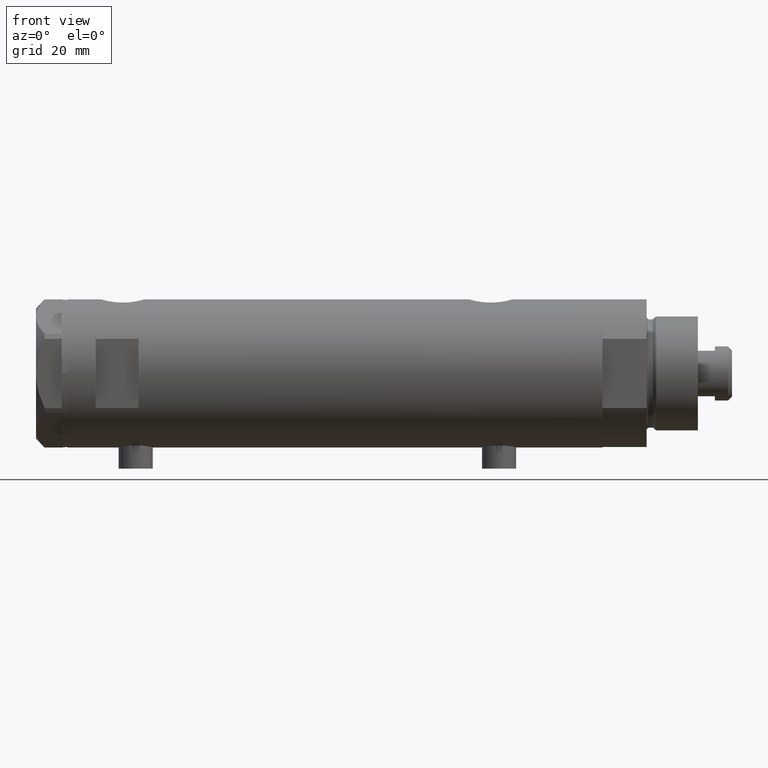
[diagram: clean part render]
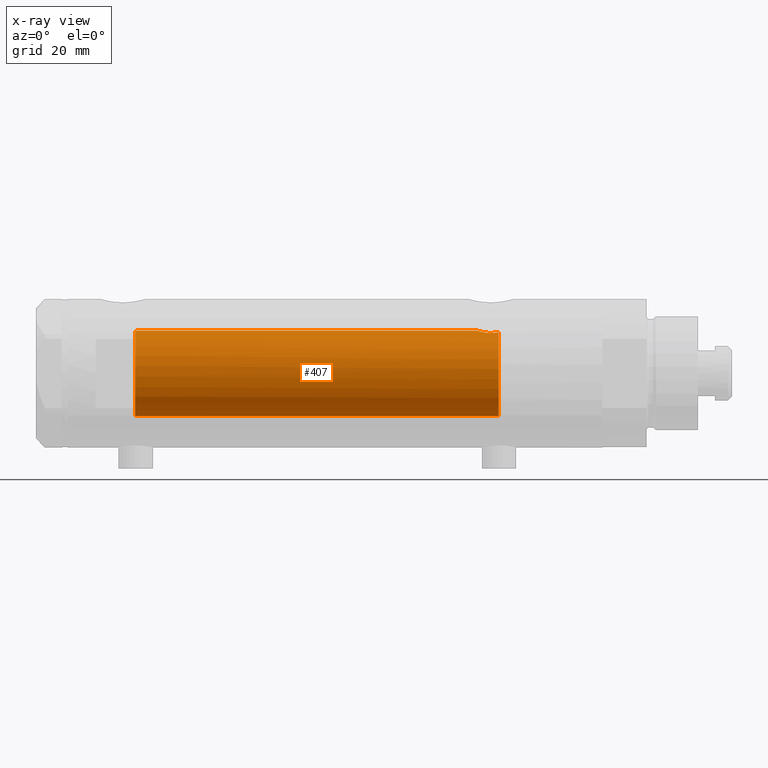
[diagram: x-ray — body ghosted, one internal face saturated and labeled with its STEP entity id]
A machine part, front view, then the same camera in x-ray: the body is ghosted and one INTERNAL B-rep face — a face not visible from any outside direction — is saturated and labeled: STEP entity #407.
In plain terms, the highlighted cylindrical surface (partial cylindrical patch) has radius 15 mm, axis along (1, 0, -0).
Its self-contained STEP definition (entity closure, byte-faithful):
#34 = CARTESIAN_POINT ( 'NONE',  ( 14.98404828787190901, -0.7909490205761857684, 69.63356230794191504 ) ) ;
#109 = CARTESIAN_POINT ( 'NONE',  ( 15.00000000000000000, 0.000000000000000000, 69.58500000000000796 ) ) ;
#133 = EDGE_LOOP ( 'NONE', ( #1731, #1426, #2569, #4001, #549, #281 ) ) ;
#137 = VERTEX_POINT ( 'NONE', #109 ) ;
#281 = ORIENTED_EDGE ( 'NONE', *, *, #3133, .T. ) ;
#299 = CARTESIAN_POINT ( 'NONE',  ( 14.46277203719950855, -3.978470183374506863, -57.55000000000000426 ) ) ;
#317 = CARTESIAN_POINT ( 'NONE',  ( 14.92307637240703677, -1.532123959568890026, -50.12726557582075770 ) ) ;
#338 = DIRECTION ( 'NONE',  ( 0.000000000000000000, 0.000000000000000000, 1.000000000000000000 ) ) ;
#348 = CARTESIAN_POINT ( 'NONE',  ( 14.90017778876744892, -1.739641523727902372, -50.20130925695124802 ) ) ;
#375 = CARTESIAN_POINT ( 'NONE',  ( 15.00000000000000000, 5.959273468635536151E-16, -49.88499999999999801 ) ) ;
#407 = ADVANCED_FACE ( 'NONE', ( #2941 ), #4464, .F. ) ;
#534 = DIRECTION ( 'NONE',  ( -1.000000000000000000, 0.000000000000000000, 0.000000000000000000 ) ) ;
#549 = ORIENTED_EDGE ( 'NONE', *, *, #1682, .F. ) ;
#669 = CARTESIAN_POINT ( 'NONE',  ( 14.25856516724843992, -4.658255869285516937, -56.17044016644937443 ) ) ;
#708 = CARTESIAN_POINT ( 'NONE',  ( 15.00000000000000000, -0.2216692655473431750, -49.88499999999999091 ) ) ;
#998 = CARTESIAN_POINT ( 'NONE',  ( 14.39424372609267877, -4.221002267729138779, -57.17893131093290293 ) ) ;
#1019 = CARTESIAN_POINT ( 'NONE',  ( 14.18786347641749757, -4.868757996482117711, -54.63322300400292875 ) ) ;
#1087 = CARTESIAN_POINT ( 'NONE',  ( 14.33349657381506681, -4.422893686125041413, -56.78827841538883803 ) ) ;
#1231 = DIRECTION ( 'NONE',  ( -0.000000000000000000, -0.000000000000000000, -1.000000000000000000 ) ) ;
#1411 = CARTESIAN_POINT ( 'NONE',  ( 14.25977760983849052, -4.654557688538888627, -53.31736805897653397 ) ) ;
#1426 = ORIENTED_EDGE ( 'NONE', *, *, #3562, .T. ) ;
#1455 = CARTESIAN_POINT ( 'NONE',  ( 14.46277203719950855, -3.978470183374506863, -57.55000000000000426 ) ) ;
#1528 = CARTESIAN_POINT ( 'NONE',  ( 14.87720562886504183, -1.924385875533404233, 69.97741675737690059 ) ) ;
#1608 = AXIS2_PLACEMENT_3D ( 'NONE', #2529, #2040, #2454 ) ;
#1650 = CARTESIAN_POINT ( 'NONE',  ( 0.000000000000000000, 0.000000000000000000, 93.95000000000001705 ) ) ;
#1682 = EDGE_CURVE ( 'NONE', #4460, #2710, #2560, .T. ) ;
#1731 = ORIENTED_EDGE ( 'NONE', *, *, #2038, .F. ) ;
#1765 = CARTESIAN_POINT ( 'NONE',  ( 0.000000000000000000, 0.000000000000000000, 70.15000000000000568 ) ) ;
#1770 = CARTESIAN_POINT ( 'NONE',  ( 15.00000000000000000, 1.836970198721029589E-15, 93.95000000000001705 ) ) ;
#1772 = CARTESIAN_POINT ( 'NONE',  ( 14.72015646623405871, -2.909233045280601893, -50.82572079632731743 ) ) ;
#1840 = CIRCLE ( 'NONE', #2776, 15.00000000000000000 ) ;
#1869 = CARTESIAN_POINT ( 'NONE',  ( 14.81710879718117546, -2.343063746046468054, -50.48067662538952050 ) ) ;
#1907 = CARTESIAN_POINT ( 'NONE',  ( -15.00000000000000000, 0.000000000000000000, -57.55000000000000426 ) ) ;
#1926 = CARTESIAN_POINT ( 'NONE',  ( 14.92029983160078643, -1.555365312915180542, 69.83609703141415537 ) ) ;
#1952 = DIRECTION ( 'NONE',  ( -0.000000000000000000, -0.000000000000000000, -1.000000000000000000 ) ) ;
#1965 = VERTEX_POINT ( 'NONE', #299 ) ;
#2038 = EDGE_CURVE ( 'NONE', #137, #2096, #2279, .T. ) ;
#2040 = DIRECTION ( 'NONE',  ( 0.000000000000000000, 0.000000000000000000, -1.000000000000000000 ) ) ;
#2096 = VERTEX_POINT ( 'NONE', #2970 ) ;
#2138 = CARTESIAN_POINT ( 'NONE',  ( 14.19858338301463441, -4.837406781463696070, -54.18614104090499239 ) ) ;
#2157 = VECTOR ( 'NONE', #3694, 1000.000000000000000 ) ;
#2172 = CARTESIAN_POINT ( 'NONE',  ( 14.23846660849503465, -4.718934182878722794, -55.95401121469808459 ) ) ;
#2194 = CARTESIAN_POINT ( 'NONE',  ( 14.42796883436190214, -4.108435602805831088, -52.10726922759030799 ) ) ;
#2279 = B_SPLINE_CURVE_WITH_KNOTS ( 'NONE', 3,
 ( #3788, #3050, #34, #3809, #1926, #1528, #3841, #3022 ),
 .UNSPECIFIED., .F., .F.,
 ( 4, 2, 2, 4 ),
 ( 0.000000000000000000, 0.001182100180564259889, 0.001773150270846394604, 0.002364200361128529319 ),
 .UNSPECIFIED. ) ;
#2357 = VERTEX_POINT ( 'NONE', #375 ) ;
#2435 = B_SPLINE_CURVE_WITH_KNOTS ( 'NONE', 3,
 ( #1455, #2880, #998, #1087, #4788, #669, #2172, #2615, #4090, #4135, #1019, #2138, #3356, #2968, #1411, #3328, #4031, #2194, #2902, #2574, #1772, #1869, #3766, #348, #317, #2947, #4418, #2543, #708, #4473 ),
 .UNSPECIFIED., .F., .F.,
 ( 4, 2, 2, 2, 2, 2, 2, 2, 2, 2, 2, 2, 2, 2, 4 ),
 ( 0.004672505804584289359, 0.005337629501999303222, 0.006002753199414317953, 0.006667876896829330949, 0.007333000594244345680, 0.007998124291659358676, 0.008663247989074373406, 0.009328371686489388137, 0.009993495383904402868, 0.01132374277873441151, 0.01265399017356442016, 0.01331911387097942448, 0.01398423756839442880, 0.01464936126580943312, 0.01531448496322443745 ),
 .UNSPECIFIED. ) ;
#2454 = DIRECTION ( 'NONE',  ( -1.000000000000000000, 0.000000000000000000, 0.000000000000000000 ) ) ;
#2529 = CARTESIAN_POINT ( 'NONE',  ( 0.000000000000000000, 0.000000000000000000, -57.55000000000000426 ) ) ;
#2543 = CARTESIAN_POINT ( 'NONE',  ( 14.99508877558421993, -0.4434836953032583184, -49.90007684727662252 ) ) ;
#2560 = LINE ( 'NONE', #3818, #4132 ) ;
#2569 = ORIENTED_EDGE ( 'NONE', *, *, #2971, .F. ) ;
#2574 = CARTESIAN_POINT ( 'NONE',  ( 14.64727859494137263, -3.248701865452407578, -51.10174013696655493 ) ) ;
#2615 = CARTESIAN_POINT ( 'NONE',  ( 14.20819413761015504, -4.809312895991456394, -55.51713251522167525 ) ) ;
#2710 = VERTEX_POINT ( 'NONE', #1907 ) ;
#2776 = AXIS2_PLACEMENT_3D ( 'NONE', #1765, #338, #2843 ) ;
#2843 = DIRECTION ( 'NONE',  ( 1.000000000000000000, 0.000000000000000000, 0.000000000000000000 ) ) ;
#2880 = CARTESIAN_POINT ( 'NONE',  ( 14.42775250319760083, -4.105775281508734054, -57.36911445102909113 ) ) ;
#2902 = CARTESIAN_POINT ( 'NONE',  ( 14.49994286062941562, -3.853373987417223479, -51.74743896782911889 ) ) ;
#2941 = FACE_OUTER_BOUND ( 'NONE', #133, .T. ) ;
#2947 = CARTESIAN_POINT ( 'NONE',  ( 14.96064712090283777, -1.106639041422191827, -50.00738179736369915 ) ) ;
#2968 = CARTESIAN_POINT ( 'NONE',  ( 14.23984499268011028, -4.714778477509579346, -53.53008258614766390 ) ) ;
#2970 = CARTESIAN_POINT ( 'NONE',  ( 14.82638779339053947, -2.275571356824482638, 70.15000000000000568 ) ) ;
#2971 = EDGE_CURVE ( 'NONE', #1965, #2357, #2435, .T. ) ;
#3022 = CARTESIAN_POINT ( 'NONE',  ( 14.82638779339053947, -2.275571356824482638, 70.15000000000000568 ) ) ;
#3050 = CARTESIAN_POINT ( 'NONE',  ( 15.00000000000000178, -0.3999014018875933218, 69.58499999999999375 ) ) ;
#3133 = EDGE_CURVE ( 'NONE', #4460, #2096, #1840, .T. ) ;
#3328 = CARTESIAN_POINT ( 'NONE',  ( 14.30772250772359833, -4.505024017690383076, -52.90010806953220879 ) ) ;
#3356 = CARTESIAN_POINT ( 'NONE',  ( 14.20926245015526135, -4.806160851464706063, -53.96377327795616452 ) ) ;
#3430 = CIRCLE ( 'NONE', #1608, 15.00000000000000000 ) ;
#3489 = AXIS2_PLACEMENT_3D ( 'NONE', #1650, #1231, #534 ) ;
#3562 = EDGE_CURVE ( 'NONE', #137, #2357, #3657, .T. ) ;
#3657 = LINE ( 'NONE', #1770, #2157 ) ;
#3694 = DIRECTION ( 'NONE',  ( -0.000000000000000000, -0.000000000000000000, -1.000000000000000000 ) ) ;
#3766 = CARTESIAN_POINT ( 'NONE',  ( 14.84733308118440220, -2.144376633039216440, -50.37751912952715116 ) ) ;
#3788 = CARTESIAN_POINT ( 'NONE',  ( 15.00000000000000000, 0.000000000000000000, 69.58500000000000796 ) ) ;
#3809 = CARTESIAN_POINT ( 'NONE',  ( 14.93900636919599556, -1.364886281976674942, 69.77622504971313333 ) ) ;
#3818 = CARTESIAN_POINT ( 'NONE',  ( -15.00000000000000000, 0.000000000000000000, 93.95000000000001705 ) ) ;
#3841 = CARTESIAN_POINT ( 'NONE',  ( 14.85289483991917692, -2.102865829523694607, 70.05860377881609224 ) ) ;
#4001 = ORIENTED_EDGE ( 'NONE', *, *, #4421, .T. ) ;
#4031 = CARTESIAN_POINT ( 'NONE',  ( 14.33594561531104006, -4.414979644548145288, -52.69453393419243525 ) ) ;
#4090 = CARTESIAN_POINT ( 'NONE',  ( 14.19797987272029438, -4.839174951492910104, -55.29741451501411831 ) ) ;
#4132 = VECTOR ( 'NONE', #1952, 1000.000000000000000 ) ;
#4135 = CARTESIAN_POINT ( 'NONE',  ( 14.18781489734108270, -4.868896704194245473, -54.85545969036063241 ) ) ;
#4418 = CARTESIAN_POINT ( 'NONE',  ( 14.97537530859971966, -0.8874117095427771496, -49.96137464055829014 ) ) ;
#4421 = EDGE_CURVE ( 'NONE', #1965, #2710, #3430, .T. ) ;
#4460 = VERTEX_POINT ( 'NONE', #4769 ) ;
#4464 = CYLINDRICAL_SURFACE ( 'NONE', #3489, 15.00000000000000000 ) ;
#4473 = CARTESIAN_POINT ( 'NONE',  ( 15.00000000000000000, 5.959273468635536151E-16, -49.88499999999999801 ) ) ;
#4769 = CARTESIAN_POINT ( 'NONE',  ( -15.00000000000000000, 0.000000000000000000, 70.15000000000000568 ) ) ;
#4788 = CARTESIAN_POINT ( 'NONE',  ( 14.30602371879161439, -4.510400617436904014, -56.58665028800271557 ) ) ;